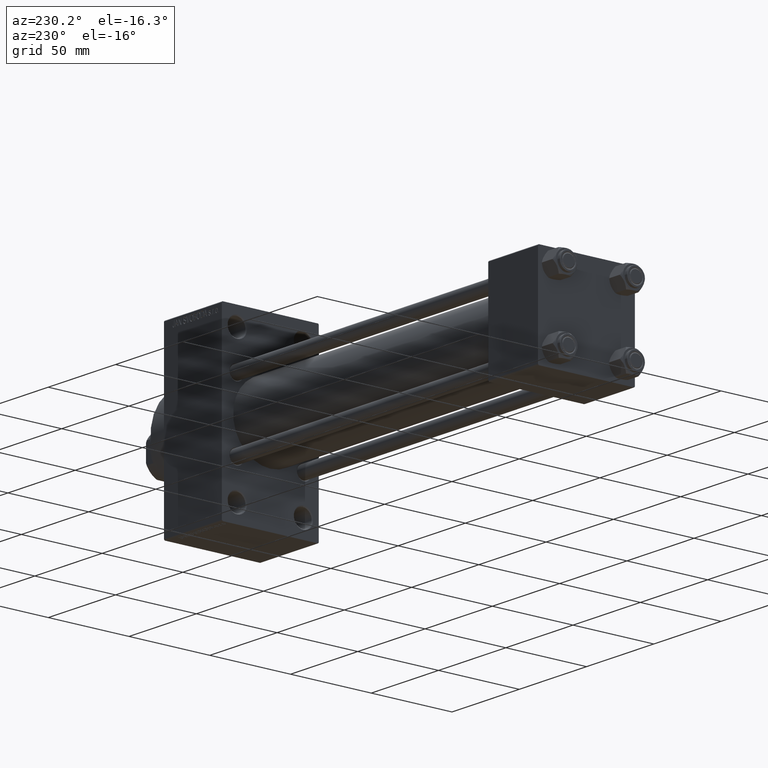
[diagram: clean part render]
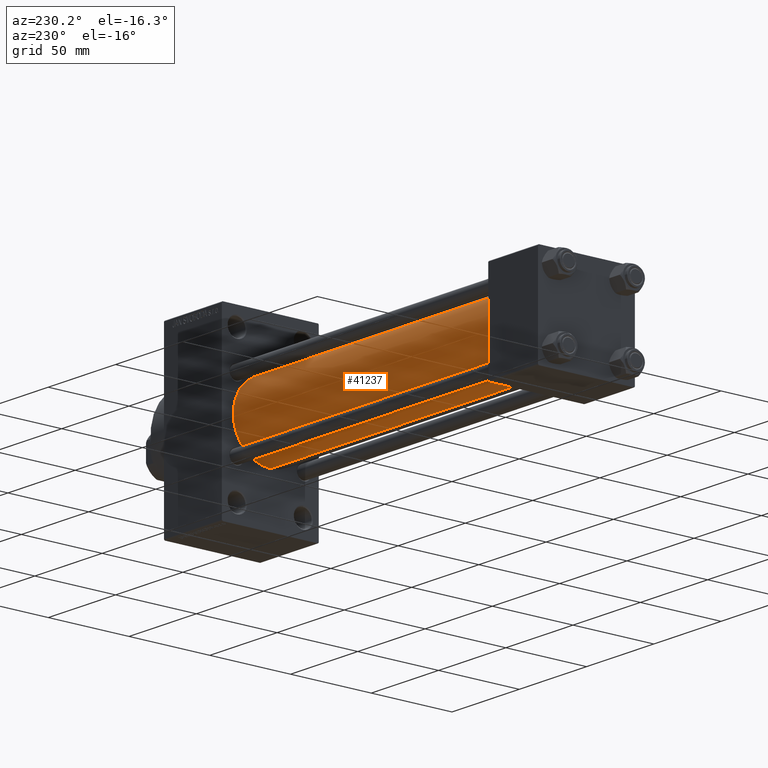
[diagram: same view with one face highlighted and labeled with its STEP entity id]
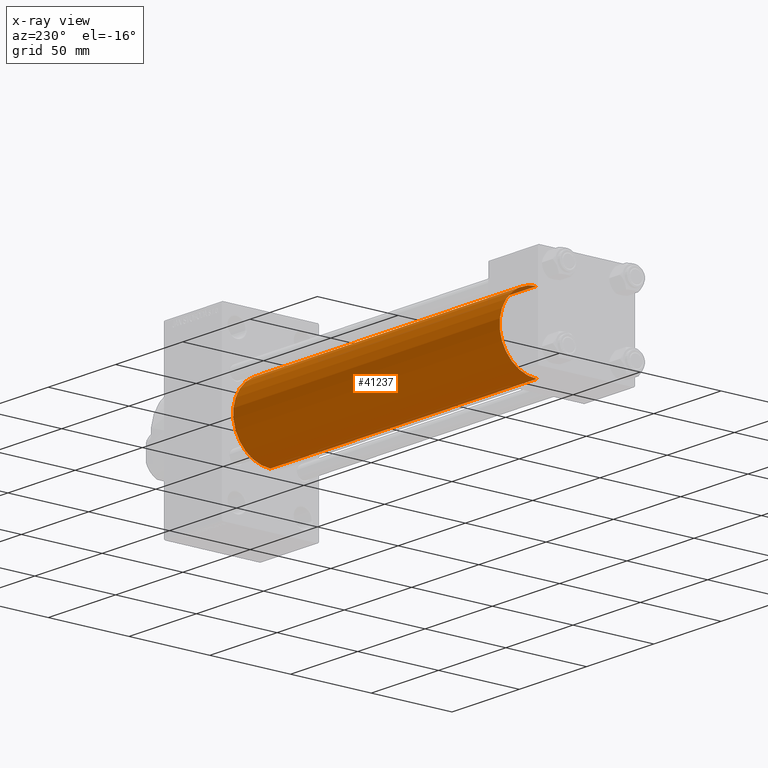
[diagram: x-ray of the same camera — body ghosted, the highlighted face saturated]
A machine part, auxiliary view. The second image highlights one B-rep face of the part: STEP entity #41237.
The next image is the same camera in x-ray: the body ghosted, the highlighted face saturated — about 0% of this face is hidden behind the body in this view.
In plain terms, the highlighted cylindrical surface (partial cylindrical patch) has radius 23 mm, axis along (-1, -0, -0).
Its self-contained STEP definition (entity closure, byte-faithful):
#6048 = CARTESIAN_POINT ( 'NONE',  ( 37.00000000000000711, -2.602085213965210642E-15, 23.00000000000000000 ) ) ;
#7059 = EDGE_CURVE ( 'NONE', #36566, #30530, #25823, .T. ) ;
#8773 = EDGE_CURVE ( 'NONE', #34120, #24524, #47119, .T. ) ;
#11028 = AXIS2_PLACEMENT_3D ( 'NONE', #34421, #15221, #30576 ) ;
#11056 = DIRECTION ( 'NONE',  ( 0.000000000000000000, 0.000000000000000000, 1.000000000000000000 ) ) ;
#13356 = ORIENTED_EDGE ( 'NONE', *, *, #7059, .T. ) ;
#13485 = CARTESIAN_POINT ( 'NONE',  ( 235.0000000000000284, -2.602085213965210642E-15, 23.00000000000000000 ) ) ;
#14124 = CIRCLE ( 'NONE', #11028, 23.00000000000000000 ) ;
#15080 = EDGE_LOOP ( 'NONE', ( #45311, #13356, #29972, #33150 ) ) ;
#15221 = DIRECTION ( 'NONE',  ( 1.000000000000000000, -0.000000000000000000, 0.000000000000000000 ) ) ;
#15731 = AXIS2_PLACEMENT_3D ( 'NONE', #41902, #23401, #20503 ) ;
#16517 = CIRCLE ( 'NONE', #15731, 23.00000000000000000 ) ;
#16758 = CARTESIAN_POINT ( 'NONE',  ( 235.0000000000000284, 2.146024240737016609E-16, -23.00000000000000000 ) ) ;
#17892 = CARTESIAN_POINT ( 'NONE',  ( 235.0000000000000284, 2.146024240737016609E-16, -23.00000000000000000 ) ) ;
#18507 = FACE_OUTER_BOUND ( 'NONE', #15080, .T. ) ;
#20503 = DIRECTION ( 'NONE',  ( 0.000000000000000000, 0.000000000000000000, -1.000000000000000000 ) ) ;
#21436 = EDGE_CURVE ( 'NONE', #30530, #24524, #14124, .T. ) ;
#22831 = CARTESIAN_POINT ( 'NONE',  ( 235.0000000000000284, -2.602085213965210642E-15, 0.000000000000000000 ) ) ;
#23401 = DIRECTION ( 'NONE',  ( 1.000000000000000000, 0.000000000000000000, 0.000000000000000000 ) ) ;
#24524 = VERTEX_POINT ( 'NONE', #6048 ) ;
#25823 = LINE ( 'NONE', #17892, #39108 ) ;
#26472 = AXIS2_PLACEMENT_3D ( 'NONE', #22831, #33178, #11056 ) ;
#26852 = EDGE_CURVE ( 'NONE', #36566, #34120, #16517, .T. ) ;
#29972 = ORIENTED_EDGE ( 'NONE', *, *, #21436, .T. ) ;
#30038 = CYLINDRICAL_SURFACE ( 'NONE', #26472, 23.00000000000000000 ) ;
#30530 = VERTEX_POINT ( 'NONE', #37501 ) ;
#30576 = DIRECTION ( 'NONE',  ( 0.000000000000000000, 0.000000000000000000, 1.000000000000000000 ) ) ;
#32234 = CARTESIAN_POINT ( 'NONE',  ( 235.0000000000000284, -2.602085213965210642E-15, 23.00000000000000000 ) ) ;
#33035 = DIRECTION ( 'NONE',  ( -1.000000000000000000, -0.000000000000000000, -0.000000000000000000 ) ) ;
#33150 = ORIENTED_EDGE ( 'NONE', *, *, #8773, .F. ) ;
#33178 = DIRECTION ( 'NONE',  ( -1.000000000000000000, -0.000000000000000000, -0.000000000000000000 ) ) ;
#34120 = VERTEX_POINT ( 'NONE', #13485 ) ;
#34421 = CARTESIAN_POINT ( 'NONE',  ( 37.00000000000000711, -2.602085213965210642E-15, 0.000000000000000000 ) ) ;
#36566 = VERTEX_POINT ( 'NONE', #16758 ) ;
#37501 = CARTESIAN_POINT ( 'NONE',  ( 37.00000000000000711, 2.146024240737016609E-16, -23.00000000000000000 ) ) ;
#39108 = VECTOR ( 'NONE', #33035, 1000.000000000000000 ) ;
#41237 = ADVANCED_FACE ( 'NONE', ( #18507 ), #30038, .T. ) ;
#41902 = CARTESIAN_POINT ( 'NONE',  ( 235.0000000000000284, -2.602085213965210642E-15, 0.000000000000000000 ) ) ;
#42223 = VECTOR ( 'NONE', #46888, 1000.000000000000000 ) ;
#45311 = ORIENTED_EDGE ( 'NONE', *, *, #26852, .F. ) ;
#46888 = DIRECTION ( 'NONE',  ( -1.000000000000000000, -0.000000000000000000, -0.000000000000000000 ) ) ;
#47119 = LINE ( 'NONE', #32234, #42223 ) ;